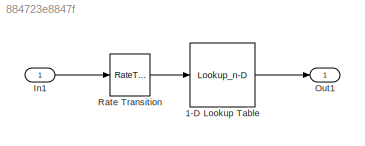
MODEL slx_884723e8847f
KIND model
BLOCK [Lookup_n-D] 1-D Lookup Table
  BreakpointsForDimension1 = [1:size(VetorTeste,2)]
  DiagnosticForOutOfRangeInput = Error
  ExtrapMethod = Clip
  IndexSearchMethod = Evenly spaced points
  InterpMethod = Flat
  NumberOfTableDimensions = 1
  OutDataTypeStr = fixdt(1,16)
  Ports = [1, 1]
  RndMeth = Simplest
  SampleTime = SampleTimeLUT
  Table = VetorTeste
  UseLastTableValue = on
BLOCK [Inport] In1
  IconDisplay = Port number
  OutDataTypeStr = uint8
  SampleTime = SampleTimeEntrada
BLOCK [Outport] Out1
  IconDisplay = Port number
BLOCK [RateTransition] Rate Transition
LINE 1-D Lookup Table:1 -> Out1:1
LINE In1:1 -> Rate Transition:1
LINE Rate Transition:1 -> 1-D Lookup Table:1
